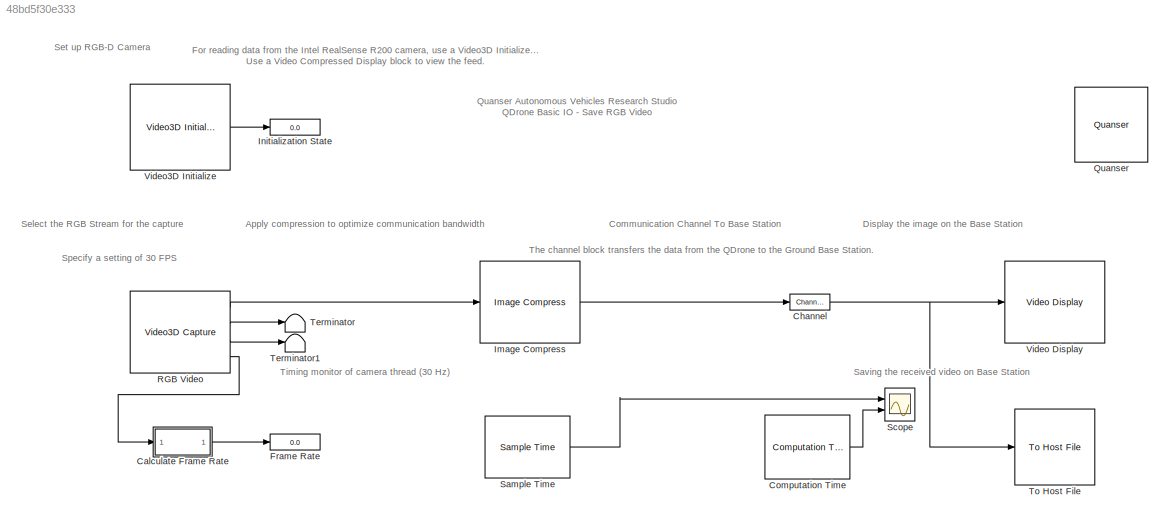
MODEL slx_48bd5f30e333
KIND model
CONFIG AbsTol = auto
CONFIG EnableMultiTasking = on
CONFIG FixedStep = 0.001
CONFIG MaxStep = auto
CONFIG MinStep = auto
CONFIG RelTol = 1e-3
CONFIG SampleTimeConstraint = Unconstrained
CONFIG Solver = FixedStepDiscrete
CONFIG SolverName = FixedStepDiscrete
CONFIG StartTime = 0.0
CONFIG StopTime = inf
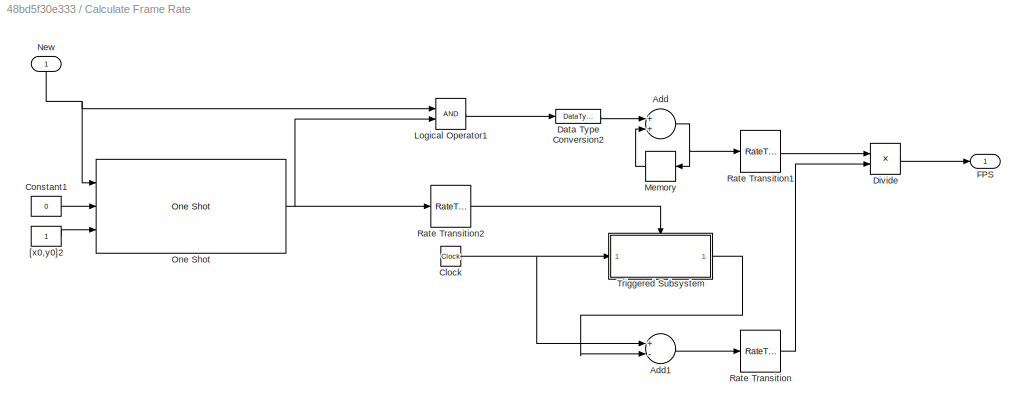
BLOCK [SubSystem] Calculate Frame Rate
  Ports = [1, 1]
  RequestExecContextInheritance = off
BLOCK [Sum] Calculate Frame Rate/Add
  InputSameDT = off
  OutDataTypeStr = Inherit: Inherit via internal rule
  Ports = [2, 1]
  SaturateOnIntegerOverflow = off
BLOCK [Sum] Calculate Frame Rate/Add1
  InputSameDT = off
  Inputs = +-
  OutDataTypeStr = Inherit: Inherit via internal rule
  Ports = [2, 1]
  SaturateOnIntegerOverflow = off
BLOCK [Clock] Calculate Frame Rate/Clock
  Decimation = 1
BLOCK [Constant] Calculate Frame Rate/Constant1
  Value = 0
BLOCK [DataTypeConversion] Calculate Frame Rate/Data Type Conversion2
  RndMeth = Floor
  SaturateOnIntegerOverflow = off
BLOCK [Product] Calculate Frame Rate/Divide
  InputSameDT = off
  Inputs = */
  OutDataTypeStr = Inherit: Inherit via internal rule
  Ports = [2, 1]
  RndMeth = Floor
  SaturateOnIntegerOverflow = off
BLOCK [Outport] Calculate Frame Rate/FPS
  IconDisplay = Port number
BLOCK [Logic] Calculate Frame Rate/Logical Operator1
  AllPortsSameDT = off
  OutDataTypeStr = boolean
  Ports = [2, 1]
BLOCK [Memory] Calculate Frame Rate/Memory
  InheritSampleTime = on
BLOCK [Inport] Calculate Frame Rate/New
  IconDisplay = Port number
BLOCK [Reference] Calculate Frame Rate/One Shot  REF=quarc_library/Discontinuities/One Shot
  Ports = [3, 1]
  SourceBlock = quarc_library/Discontinuities/One Shot
  SourceProductName = QUARC Targets
  SourceType = One Shot
BLOCK [RateTransition] Calculate Frame Rate/Rate Transition
BLOCK [RateTransition] Calculate Frame Rate/Rate Transition1
BLOCK [RateTransition] Calculate Frame Rate/Rate Transition2
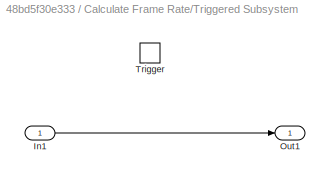
BLOCK [SubSystem] Calculate Frame Rate/Triggered Subsystem
  Ports = [1, 1, 0, 1]
  RequestExecContextInheritance = off
  TreatAsAtomicUnit = on
BLOCK [Inport] Calculate Frame Rate/Triggered Subsystem/In1
  IconDisplay = Port number
BLOCK [Outport] Calculate Frame Rate/Triggered Subsystem/Out1
  IconDisplay = Port number
BLOCK [TriggerPort] Calculate Frame Rate/Triggered Subsystem/Trigger
  Ports = []
  StatesWhenEnabling = held
  VariantControl = Variant
BLOCK [Constant] Calculate Frame Rate/[x0,y0]2
BLOCK [Reference] Channel  REF=quarc_library/Signal Routing/Channel
  Ports = [1, 1]
  SourceBlock = quarc_library/Signal Routing/Channel
  SourceProductName = QUARC Targets
  SourceType = Channel
BLOCK [Reference] Computation Time  REF=quarc_library/Sources/Time/Computation Time
  Ports = [0, 1]
  SourceBlock = quarc_library/Sources/Time/Computation Time
  SourceProductName = QUARC Targets
  SourceType = Computation Time
BLOCK [Display] Frame Rate
  Decimation = 100
  Ports = [1]
BLOCK [Reference] Image Compress  REF=quarc_library/Image Processing/Generic/Image Compress
  AttributesFormatString = (%<algorithm>)
  Ports = [1, 1]
  SourceBlock = quarc_library/Image Processing/Generic/Image Compress
  SourceProductName = QUARC Targets
  SourceType = Image Compress
BLOCK [Display] Initialization State
  Decimation = 100
  Ports = [1]
BLOCK [Reference] Quanser  REF=quarc_library/Logos/Quanser
  Ports = []
  SourceBlock = quarc_library/Logos/Quanser
  SourceProductName = QUARC Targets
  SourceType = Powered by Quanser
BLOCK [Reference] RGB Video  REF=quarc_library/Multimedia/Video3D Capture
  Ports = [0, 4]
  SourceBlock = quarc_library/Multimedia/Video3D Capture
  SourceProductName = QUARC Targets
  SourceType = Video3D Capture
  UserDataPersistent = on
BLOCK [Reference] Sample Time  REF=quarc_library/Sources/Time/Sample Time
  Ports = [0, 1]
  Priority = -99
  SourceBlock = quarc_library/Sources/Time/Sample Time
  SourceProductName = QUARC Targets
  SourceType = Sample Time
BLOCK [Scope] Scope
  Floating = off
  NumInputPorts = 2
  Ports = [2]
  ScopeSpecificationString = Simulink.scopes.TimeScopeBlockCfg('CurrentConfiguration', extmgr.ConfigurationSet(extmgr.Configuration('Core','General UI',true),extmgr.Configuration('Core','Source UI',true),extmgr.Configuration('Sources','WiredSimulink',true),extmgr.Configuration('Visuals','Time Domain',true,'SerializedDisplays',{struct('MinYLimReal','0.01242','MaxYLimReal','0.03735','YLabelReal','','MinYLimMag','0.01242','MaxYL...<+1978ch>
BLOCK [Terminator] Terminator
BLOCK [Terminator] Terminator1
BLOCK [Reference] To Host File  REF=quarc_library/Sinks/To Host/To Host File
  AttributesFormatString = %<final_file_name>
  Ports = [1]
  SourceBlock = quarc_library/Sinks/To Host/To Host File
  SourceProductName = QUARC Targets
  SourceType = To Host File
BLOCK [Reference] Video Display  REF=quarc_library/Multimedia/Video Display
  Ports = [1]
  SourceBlock = quarc_library/Multimedia/Video Display
  SourceProductName = QUARC Targets
  SourceType = Video Display
  Tag = Save_RGB_Video/Video Display
  UserDataPersistent = on
BLOCK [Reference] Video3D Initialize  REF=quarc_library/Multimedia/Video3D Initialize
  Ports = [0, 1]
  SourceBlock = quarc_library/Multimedia/Video3D Initialize
  SourceProductName = QUARC Targets
  SourceType = Video3D Initialize
ANNOTATION (root): Quanser Autonomous Vehicles Research Studio QDrone Basic IO - Save RGB Video
ANNOTATION (root): For reading data from the Intel RealSense R200 camera, use a Video3D Initialize block with the Device Identifier set to 0. Add Video3D Capture blocks as required and select the corresponding channel you want to view (RGB, Depth, Infrared, etc). Use a Video Compressed Display block to view the feed.
ANNOTATION (root): Apply compression to optimize communication bandwidth
ANNOTATION (root): Communication Channel To Base Station
ANNOTATION (root): Display the image on the Base Station
ANNOTATION (root): Saving the received video on Base Station
ANNOTATION (root): Select the RGB Stream for the capture
ANNOTATION (root): Set up RGB-D Camera
ANNOTATION (root): Specify a setting of 30 FPS
ANNOTATION (root): The channel block transfers the data from the QDrone to the Ground Base Station.
ANNOTATION (root): Timing monitor of camera thread (30 Hz)
LINE Calculate Frame Rate/Add1:1 -> Calculate Frame Rate/Rate Transition:1
NET Calculate Frame Rate/Add:1 -> Calculate Frame Rate/Memory:1, Calculate Frame Rate/Rate Transition1:1
NET Calculate Frame Rate/Clock:1 -> Calculate Frame Rate/Add1:1, Calculate Frame Rate/Triggered Subsystem:1
LINE Calculate Frame Rate/Constant1:1 -> Calculate Frame Rate/One Shot:2
LINE Calculate Frame Rate/Data Type Conversion2:1 -> Calculate Frame Rate/Add:1
LINE Calculate Frame Rate/Divide:1 -> Calculate Frame Rate/FPS:1
LINE Calculate Frame Rate/Logical Operator1:1 -> Calculate Frame Rate/Data Type Conversion2:1
LINE Calculate Frame Rate/Memory:1 -> Calculate Frame Rate/Add:2
NET Calculate Frame Rate/New:1 -> Calculate Frame Rate/Logical Operator1:1, Calculate Frame Rate/One Shot:1
NET Calculate Frame Rate/One Shot:1 -> Calculate Frame Rate/Logical Operator1:2, Calculate Frame Rate/Rate Transition2:1
LINE Calculate Frame Rate/Rate Transition1:1 -> Calculate Frame Rate/Divide:1
LINE Calculate Frame Rate/Rate Transition2:1 -> Calculate Frame Rate/Triggered Subsystem:trigger
LINE Calculate Frame Rate/Rate Transition:1 -> Calculate Frame Rate/Divide:2
LINE Calculate Frame Rate/Triggered Subsystem/In1:1 -> Calculate Frame Rate/Triggered Subsystem/Out1:1
LINE Calculate Frame Rate/Triggered Subsystem:1 -> Calculate Frame Rate/Add1:2
LINE Calculate Frame Rate/[x0,y0]2:1 -> Calculate Frame Rate/One Shot:3
LINE Calculate Frame Rate:1 -> Frame Rate:1
NET Channel:1 -> To Host File:1, Video Display:1
LINE Computation Time:1 -> Scope:2
LINE Image Compress:1 -> Channel:1
LINE RGB Video:1 -> Image Compress:1
LINE RGB Video:2 -> Terminator:1
LINE RGB Video:3 -> Terminator1:1
LINE RGB Video:4 -> Calculate Frame Rate:1
LINE Sample Time:1 -> Scope:1
LINE Video3D Initialize:1 -> Initialization State:1
note: NET lines group one-source signal fan-out (src -> all destinations, sorted); 1:1 wires keep LINE
